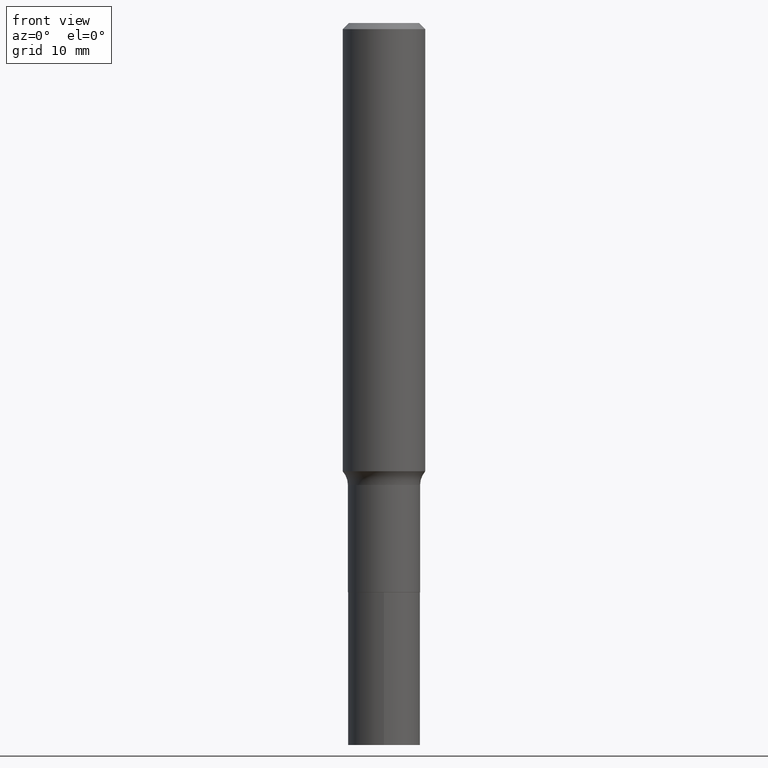
[diagram: clean part render]
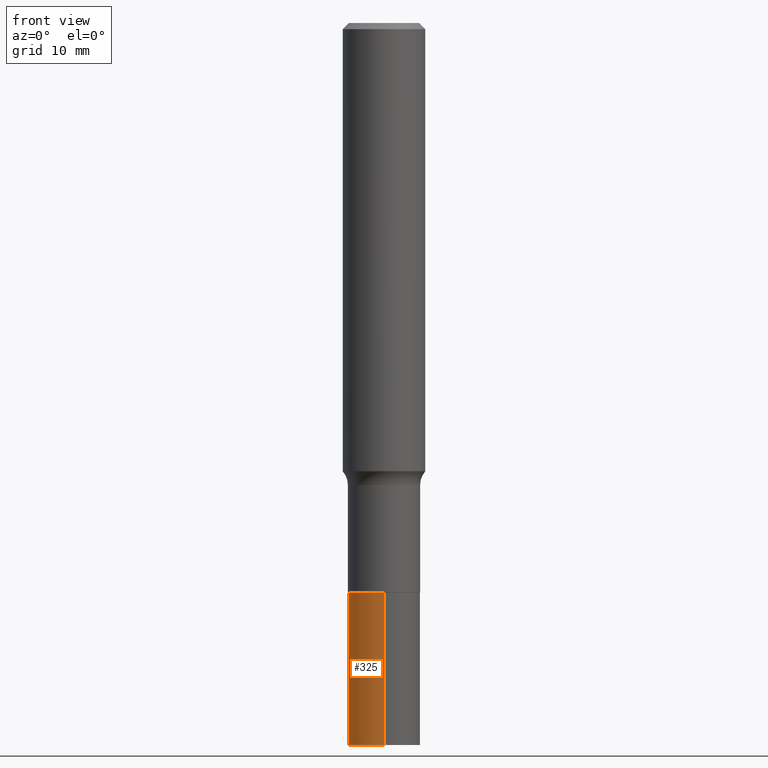
[diagram: same view with one face highlighted and labeled with its STEP entity id]
A machine part, front view. The second image highlights one B-rep face of the part: STEP entity #325.
In plain terms, the highlighted cylindrical surface (edge-blend (fillet) strip) has radius 3.5001 mm, axis along (-0, 0, 1).
Its self-contained STEP definition (entity closure, byte-faithful):
#22 = DIRECTION ( 'NONE',  ( -2.445843148108282569E-29, 3.490945259902981668E-15, 1.000000000000000000 ) ) ;
#24 = VERTEX_POINT ( 'NONE', #78 ) ;
#28 = DIRECTION ( 'NONE',  ( -2.445843148108282849E-29, 3.490945259902982062E-15, 1.000000000000000000 ) ) ;
#32 = CARTESIAN_POINT ( 'NONE',  ( -9.622522569851000294E-16, -0.1378000000000096370, -2.755900000000000016 ) ) ;
#33 = EDGE_CURVE ( 'NONE', #24, #270, #449, .T. ) ;
#41 = EDGE_CURVE ( 'NONE', #301, #24, #234, .T. ) ;
#54 = DIRECTION ( 'NONE',  ( -6.982962677686265922E-15, -1.000000000000000000, 3.964946289788480896E-15 ) ) ;
#62 = CARTESIAN_POINT ( 'NONE',  ( 9.791278898774711484E-16, 0.1377999999999924285, -2.172900000000000276 ) ) ;
#65 = DIRECTION ( 'NONE',  ( -2.445843148108282849E-29, 3.490945259902982062E-15, 1.000000000000000000 ) ) ;
#69 = DIRECTION ( 'NONE',  ( -2.445843148108282569E-29, 3.490945259902981668E-15, 1.000000000000000000 ) ) ;
#78 = CARTESIAN_POINT ( 'NONE',  ( 9.791278898774855451E-16, 0.1377999999999924285, -2.172900000000000276 ) ) ;
#96 = LINE ( 'NONE', #424, #238 ) ;
#100 = AXIS2_PLACEMENT_3D ( 'NONE', #456, #22, #269 ) ;
#101 = AXIS2_PLACEMENT_3D ( 'NONE', #204, #131, #54 ) ;
#131 = DIRECTION ( 'NONE',  ( -2.445843148108282569E-29, 3.490945259902981668E-15, 1.000000000000000000 ) ) ;
#139 = EDGE_CURVE ( 'NONE', #301, #441, #258, .T. ) ;
#156 = EDGE_CURVE ( 'NONE', #441, #270, #96, .T. ) ;
#158 = VECTOR ( 'NONE', #65, 39.37007874015748143 ) ;
#177 = FACE_OUTER_BOUND ( 'NONE', #272, .T. ) ;
#192 = ORIENTED_EDGE ( 'NONE', *, *, #41, .F. ) ;
#204 = CARTESIAN_POINT ( 'NONE',  ( 6.739685724306814341E-29, -9.621860887695710828E-15, -2.755900000000000460 ) ) ;
#208 = ORIENTED_EDGE ( 'NONE', *, *, #156, .T. ) ;
#213 = DIRECTION ( 'NONE',  ( -6.982962677686265922E-15, -1.000000000000000000, 3.964946289788480896E-15 ) ) ;
#234 = LINE ( 'NONE', #62, #158 ) ;
#238 = VECTOR ( 'NONE', #28, 39.37007874015748143 ) ;
#247 = CYLINDRICAL_SURFACE ( 'NONE', #262, 0.1378000000000000058 ) ;
#258 = CIRCLE ( 'NONE', #101, 0.1378000000000000058 ) ;
#262 = AXIS2_PLACEMENT_3D ( 'NONE', #314, #69, #213 ) ;
#269 = DIRECTION ( 'NONE',  ( -6.982962677686265922E-15, -1.000000000000000000, 3.964946289788480896E-15 ) ) ;
#270 = VERTEX_POINT ( 'NONE', #437 ) ;
#272 = EDGE_LOOP ( 'NONE', ( #192, #339, #208, #351 ) ) ;
#301 = VERTEX_POINT ( 'NONE', #317 ) ;
#314 = CARTESIAN_POINT ( 'NONE',  ( 5.313759168959683004E-29, -7.586639801172270765E-15, -2.172899999999999832 ) ) ;
#317 = CARTESIAN_POINT ( 'NONE',  ( 9.791278898774782481E-16, 0.1377999999999903746, -2.755900000000000905 ) ) ;
#325 = ADVANCED_FACE ( 'NONE', ( #177 ), #247, .T. ) ;
#339 = ORIENTED_EDGE ( 'NONE', *, *, #139, .T. ) ;
#351 = ORIENTED_EDGE ( 'NONE', *, *, #33, .F. ) ;
#424 = CARTESIAN_POINT ( 'NONE',  ( -9.622522569851144261E-16, -0.1378000000000075831, -2.172899999999999388 ) ) ;
#437 = CARTESIAN_POINT ( 'NONE',  ( -9.622522569851144261E-16, -0.1378000000000075831, -2.172899999999999388 ) ) ;
#441 = VERTEX_POINT ( 'NONE', #32 ) ;
#449 = CIRCLE ( 'NONE', #100, 0.1378000000000000058 ) ;
#456 = CARTESIAN_POINT ( 'NONE',  ( 5.313759168959683004E-29, -7.586639801172270765E-15, -2.172899999999999832 ) ) ;